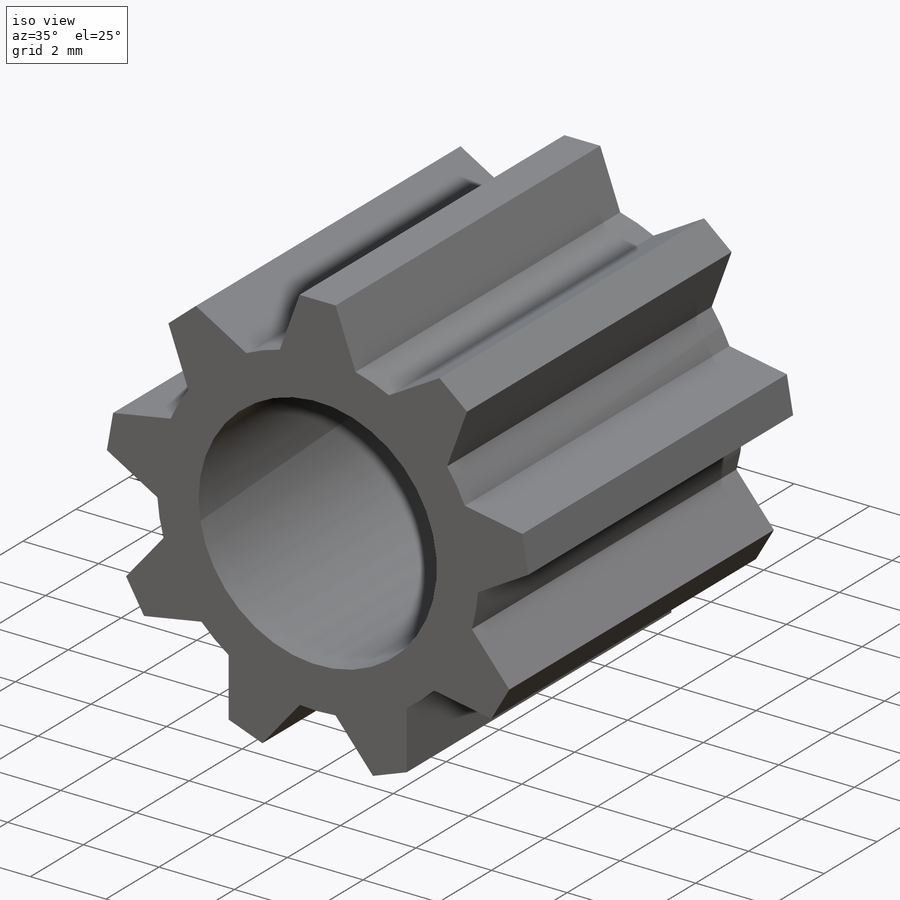
[diagram: iso view]
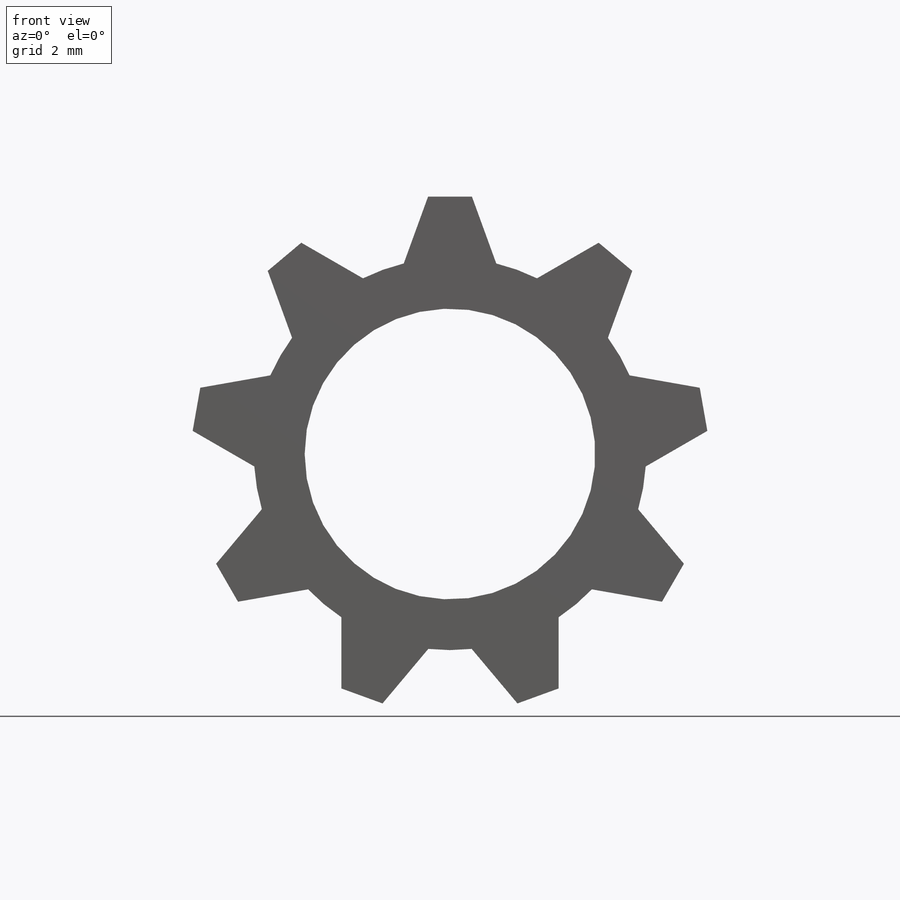
[diagram: front view]
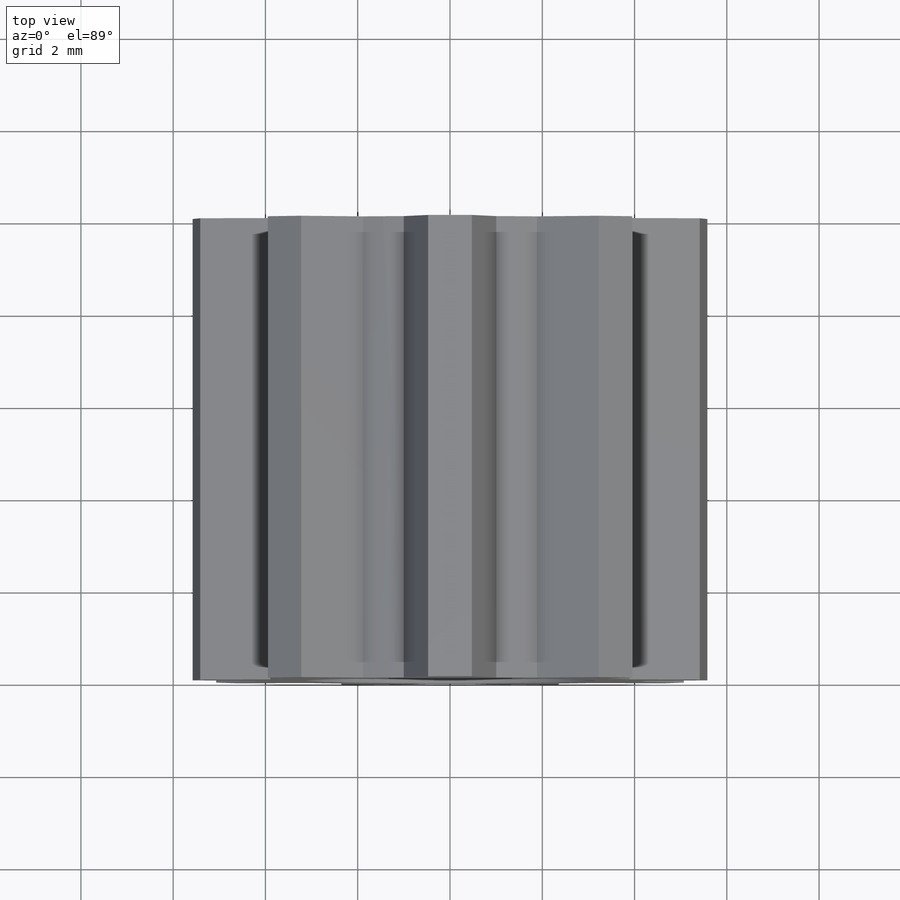
[diagram: top view]
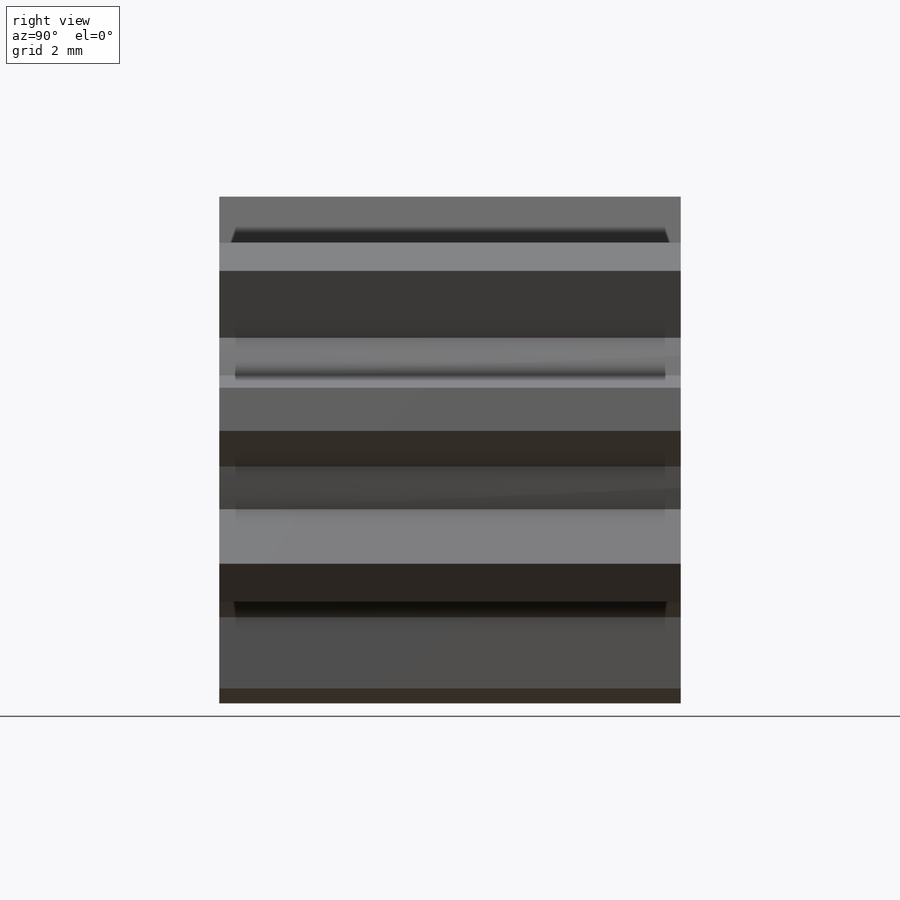
[diagram: right view]
SOLIDWORKS PART (.sldprt)
format: sldprt  version: not decoded by parser v0  size: 175,616 bytes
history: native  units: mm
features: sketch x3, extrude x2, material x1, cut_extrude x1, pattern_circular x1 + 1 further entry (+13 scaffold rows collapsed)
feature tree (22):
  scaffold x13  (default folders/planes/origin — collapsed)
  material  "Material <not specified>"
  "Annotations"  RD1=0.940526mm
  sketch  "Sketch1"  dims[D1=8.5mm]
  extrude  "Extrude1"  Depth=10mm
  sketch  "Sketch3"  dims[D1=6.3mm]
  cut_extrude  "Extrude2"  [1 undecoded]
  sketch  "Sketch4"  dims[c1.D1=0.95mm c1.D2=2.0mm c2.D2=~62.009338deg c3.D2=~0.792589mm c4.D2=70.0deg c4.D3=1.45mm]
  extrude  "Extrude3"  Depth=10mm
  pattern_circular  "CirPattern1"  Count=9 Angle=360deg
decode coverage: 6 of 7 modeling features carry decoded parameters; 1 rows unclassified (native names shown)
note: ~ marks probable driven/reference dimensions
note: 1 parameter value undecoded
note: suppression state not decoded; provenance and decode notes live in map.json
